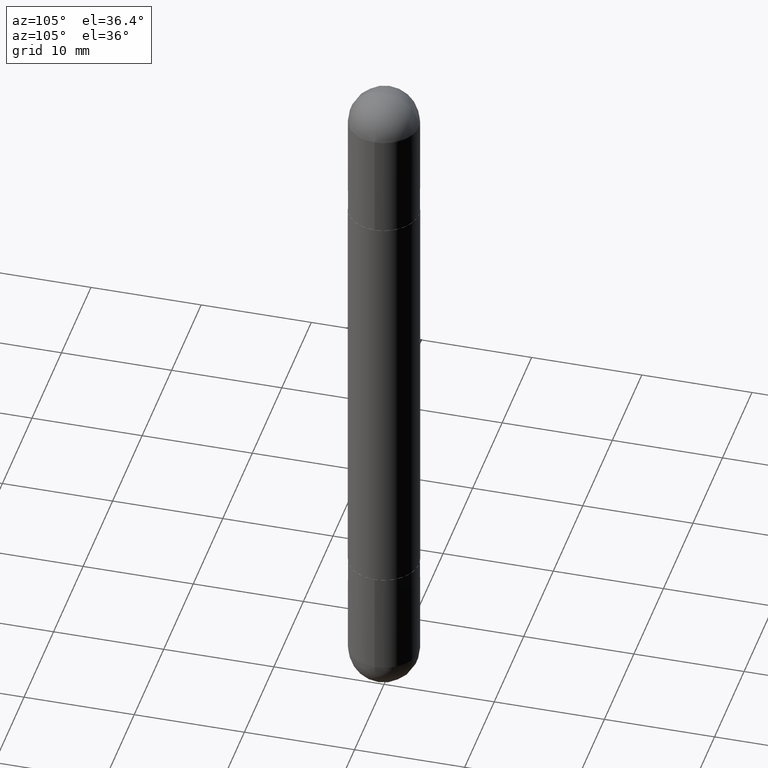
[diagram: clean part render]
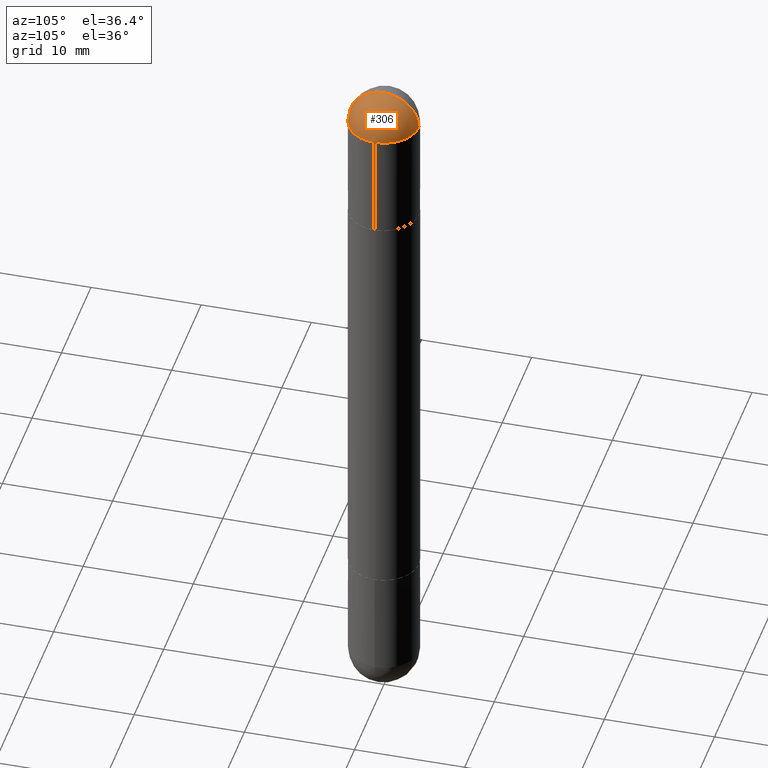
[diagram: same view with one face highlighted and labeled with its STEP entity id]
A machine part, auxiliary view. The second image highlights one B-rep face of the part: STEP entity #306.
In plain terms, the highlighted spherical surface has radius 3.175 mm.
Its self-contained STEP definition (entity closure, byte-faithful):
#22 = CARTESIAN_POINT ( 'NONE',  ( 5.476868636775814291E-29, -8.766450547892521992E-15, -0.1250000000000004441 ) ) ;
#32 = CARTESIAN_POINT ( 'NONE',  ( 5.787897026856327965E-29, -9.195231672753244292E-15, -2.561107494060246644E-16 ) ) ;
#45 = DIRECTION ( 'NONE',  ( -1.000000000000000000, 6.982962677686265922E-15, 4.883557194083112340E-29 ) ) ;
#48 = DIRECTION ( 'NONE',  ( 1.000000000000000000, -6.860497997771530774E-15, -4.840798879624142912E-29 ) ) ;
#71 = EDGE_CURVE ( 'NONE', #591, #645, #437, .T. ) ;
#163 = DIRECTION ( 'NONE',  ( 2.445468806185136597E-29, -3.491481338843145583E-15, 1.000000000000000000 ) ) ;
#165 = DIRECTION ( 'NONE',  ( -6.982962677686265133E-15, -1.000000000000000000, 0.000000000000000000 ) ) ;
#181 = EDGE_CURVE ( 'NONE', #814, #700, #185, .T. ) ;
#185 = CIRCLE ( 'NONE', #790, 0.1250000000000001943 ) ;
#260 = AXIS2_PLACEMENT_3D ( 'NONE', #783, #163, #354 ) ;
#306 = ADVANCED_FACE ( 'NONE', ( #736 ), #551, .T. ) ;
#308 = ORIENTED_EDGE ( 'NONE', *, *, #650, .F. ) ;
#350 = DIRECTION ( 'NONE',  ( 6.982962677686265922E-15, 1.000000000000000000, 3.551402391763536859E-15 ) ) ;
#354 = DIRECTION ( 'NONE',  ( 1.000000000000000000, -6.982962677686270655E-15, 0.000000000000000000 ) ) ;
#437 = CIRCLE ( 'NONE', #260, 0.1250000000000000000 ) ;
#444 = ORIENTED_EDGE ( 'NONE', *, *, #181, .T. ) ;
#456 = DIRECTION ( 'NONE',  ( 2.445468806185136597E-29, -3.491481338843145583E-15, 1.000000000000000000 ) ) ;
#490 = CARTESIAN_POINT ( 'NONE',  ( 5.476868636775814291E-29, -8.766450547892521992E-15, -0.1250000000000004441 ) ) ;
#512 = AXIS2_PLACEMENT_3D ( 'NONE', #22, #45, #165 ) ;
#516 = ORIENTED_EDGE ( 'NONE', *, *, #566, .T. ) ;
#539 = DIRECTION ( 'NONE',  ( 1.000000000000000000, -6.982962677686270655E-15, 0.000000000000000000 ) ) ;
#551 = SPHERICAL_SURFACE ( 'NONE', #583, 0.1250000000000001943 ) ;
#554 = CARTESIAN_POINT ( 'NONE',  ( -8.575622497213856334E-16, -0.1250000000000086320, -0.1250000000000008882 ) ) ;
#564 = CIRCLE ( 'NONE', #807, 0.1250000000000000000 ) ;
#566 = EDGE_CURVE ( 'NONE', #700, #591, #564, .T. ) ;
#583 = AXIS2_PLACEMENT_3D ( 'NONE', #625, #677, #350 ) ;
#591 = VERTEX_POINT ( 'NONE', #646 ) ;
#625 = CARTESIAN_POINT ( 'NONE',  ( 5.476868636775814291E-29, -8.766450547892521992E-15, -0.1250000000000004441 ) ) ;
#645 = VERTEX_POINT ( 'NONE', #652 ) ;
#646 = CARTESIAN_POINT ( 'NONE',  ( 0.1250000000000000000, -8.510485763430165164E-15, -0.1250000000000004441 ) ) ;
#650 = EDGE_CURVE ( 'NONE', #814, #645, #810, .T. ) ;
#652 = CARTESIAN_POINT ( 'NONE',  ( 8.728703347108403340E-16, 0.1249999999999915623, -0.1250000000000000000 ) ) ;
#677 = DIRECTION ( 'NONE',  ( 1.000000000000000000, -6.982962677686265922E-15, -4.883557194083112901E-29 ) ) ;
#700 = VERTEX_POINT ( 'NONE', #554 ) ;
#704 = ORIENTED_EDGE ( 'NONE', *, *, #71, .T. ) ;
#736 = FACE_OUTER_BOUND ( 'NONE', #756, .T. ) ;
#756 = EDGE_LOOP ( 'NONE', ( #308, #444, #516, #704 ) ) ;
#771 = CARTESIAN_POINT ( 'NONE',  ( 5.807988414689700538E-29, -8.292268179752471696E-15, -0.1250000000000004441 ) ) ;
#783 = CARTESIAN_POINT ( 'NONE',  ( 5.807988414689700538E-29, -8.292268179752471696E-15, -0.1250000000000004441 ) ) ;
#790 = AXIS2_PLACEMENT_3D ( 'NONE', #490, #48, #805 ) ;
#805 = DIRECTION ( 'NONE',  ( 6.860497997771529196E-15, 1.000000000000000000, 0.000000000000000000 ) ) ;
#807 = AXIS2_PLACEMENT_3D ( 'NONE', #771, #456, #539 ) ;
#810 = CIRCLE ( 'NONE', #512, 0.1250000000000001943 ) ;
#814 = VERTEX_POINT ( 'NONE', #32 ) ;